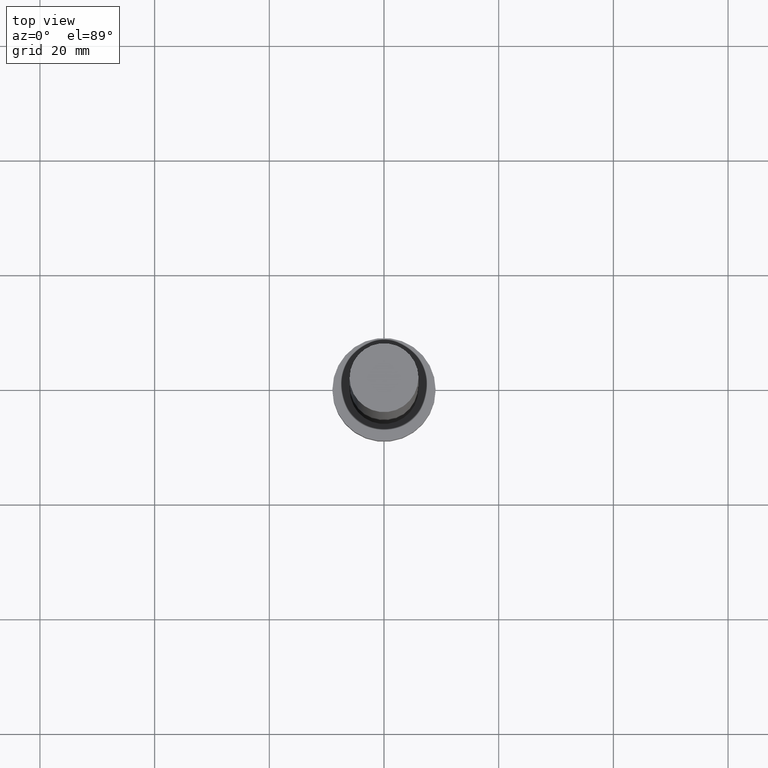
[diagram: clean part render]
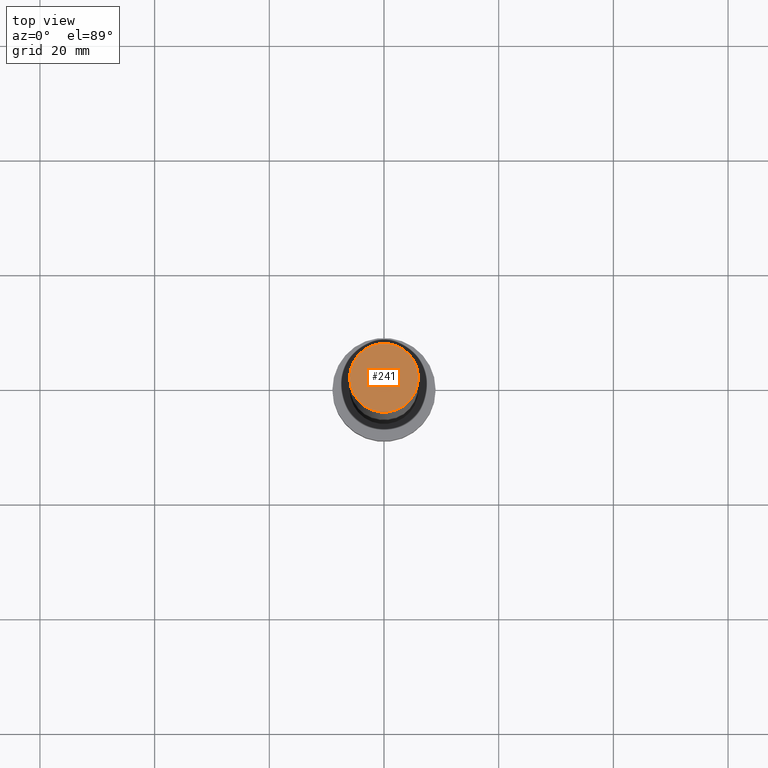
[diagram: same view with one face highlighted and labeled with its STEP entity id]
A machine part, top view. The second image highlights one B-rep face of the part: STEP entity #241.
In plain terms, the highlighted planar face has unit normal (0, 0, 1).
Its self-contained STEP definition (entity closure, byte-faithful):
#15 = CARTESIAN_POINT ( 'NONE',  ( 6.000000000000000888, 7.347880794884120722E-16, 125.0000000000000000 ) ) ;
#22 = VERTEX_POINT ( 'NONE', #15 ) ;
#35 = CARTESIAN_POINT ( 'NONE',  ( 0.000000000000000000, 0.000000000000000000, 125.0000000000000000 ) ) ;
#37 = DIRECTION ( 'NONE',  ( 0.000000000000000000, 0.000000000000000000, 1.000000000000000000 ) ) ;
#42 = CIRCLE ( 'NONE', #96, 6.000000000000000888 ) ;
#47 = DIRECTION ( 'NONE',  ( 1.000000000000000000, 0.000000000000000000, 0.000000000000000000 ) ) ;
#51 = DIRECTION ( 'NONE',  ( 0.000000000000000000, 0.000000000000000000, 1.000000000000000000 ) ) ;
#85 = AXIS2_PLACEMENT_3D ( 'NONE', #202, #181, #47 ) ;
#96 = AXIS2_PLACEMENT_3D ( 'NONE', #35, #37, #129 ) ;
#99 = EDGE_CURVE ( 'NONE', #193, #22, #42, .T. ) ;
#100 = EDGE_LOOP ( 'NONE', ( #124, #157 ) ) ;
#118 = FACE_OUTER_BOUND ( 'NONE', #100, .T. ) ;
#124 = ORIENTED_EDGE ( 'NONE', *, *, #99, .T. ) ;
#129 = DIRECTION ( 'NONE',  ( 1.000000000000000000, 0.000000000000000000, 0.000000000000000000 ) ) ;
#141 = CARTESIAN_POINT ( 'NONE',  ( 0.000000000000000000, 0.000000000000000000, 125.0000000000000000 ) ) ;
#157 = ORIENTED_EDGE ( 'NONE', *, *, #171, .T. ) ;
#163 = DIRECTION ( 'NONE',  ( 1.000000000000000000, 0.000000000000000000, -0.000000000000000000 ) ) ;
#171 = EDGE_CURVE ( 'NONE', #22, #193, #224, .T. ) ;
#181 = DIRECTION ( 'NONE',  ( 0.000000000000000000, 0.000000000000000000, 1.000000000000000000 ) ) ;
#184 = AXIS2_PLACEMENT_3D ( 'NONE', #141, #51, #163 ) ;
#193 = VERTEX_POINT ( 'NONE', #237 ) ;
#202 = CARTESIAN_POINT ( 'NONE',  ( 0.000000000000000000, 0.000000000000000000, 125.0000000000000000 ) ) ;
#206 = PLANE ( 'NONE',  #184 ) ;
#224 = CIRCLE ( 'NONE', #85, 6.000000000000000888 ) ;
#237 = CARTESIAN_POINT ( 'NONE',  ( -6.000000000000000888, 0.000000000000000000, 125.0000000000000000 ) ) ;
#241 = ADVANCED_FACE ( 'NONE', ( #118 ), #206, .T. ) ;